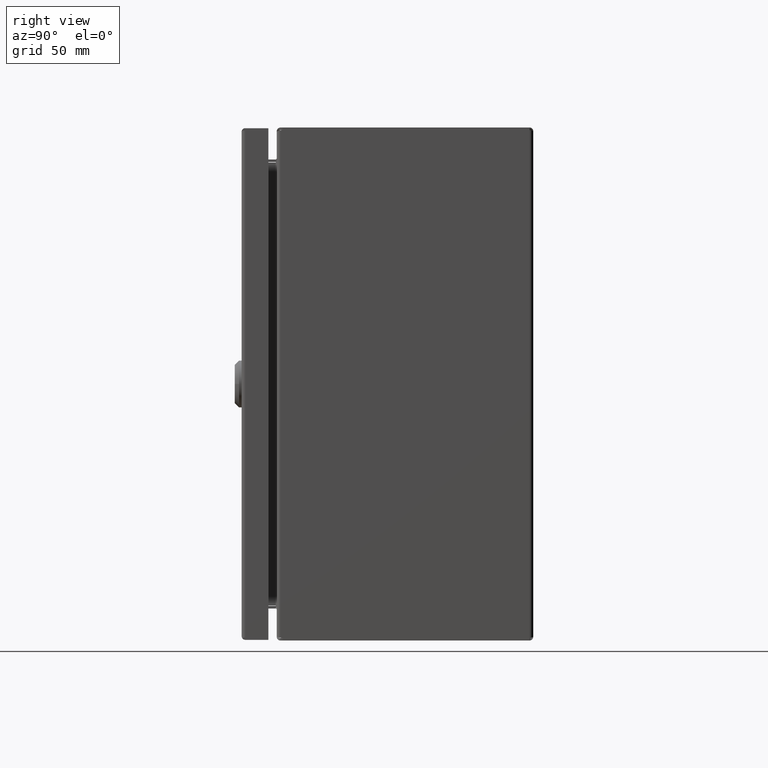
[diagram: clean part render]
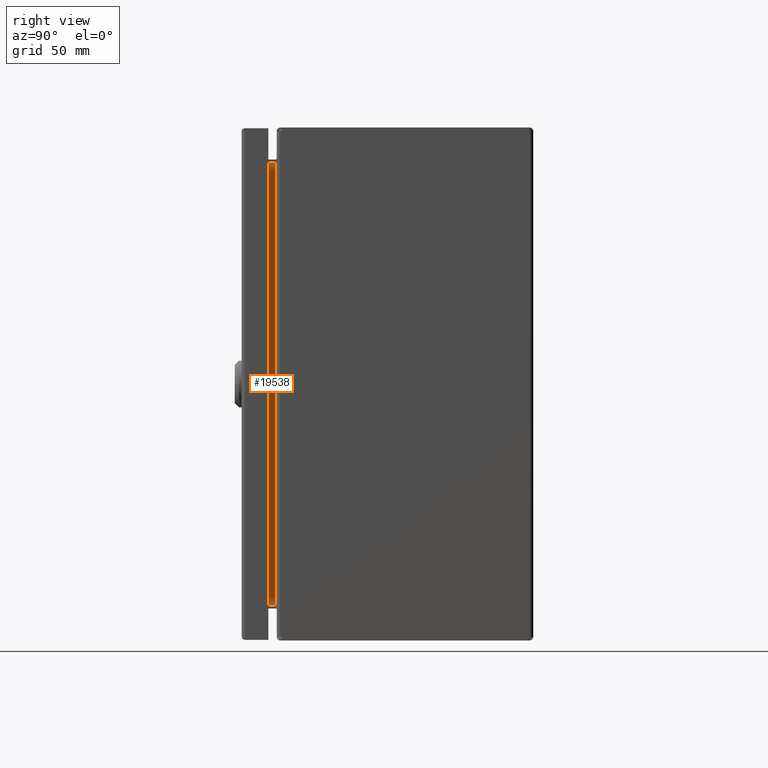
[diagram: same view with one face highlighted and labeled with its STEP entity id]
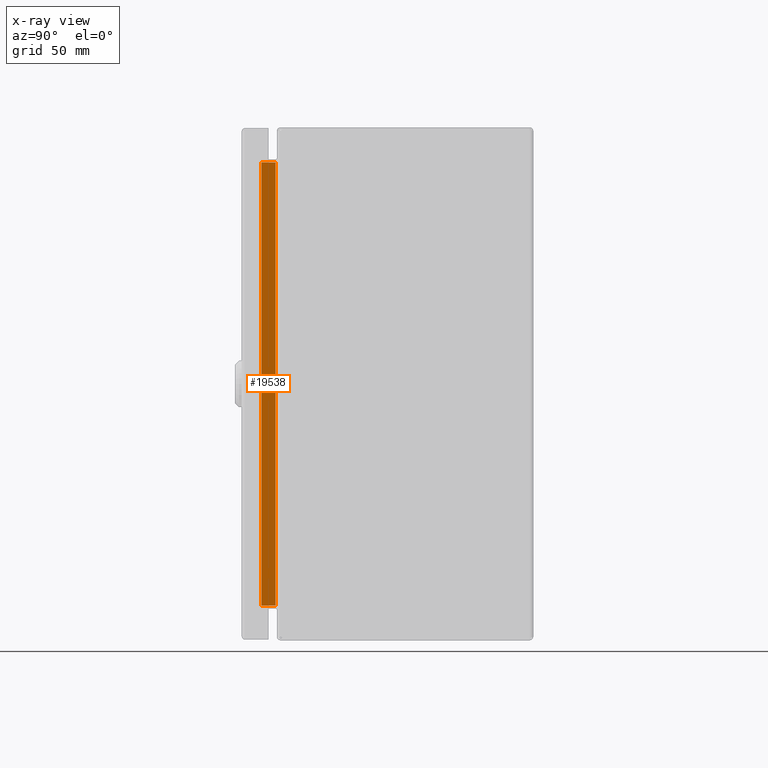
[diagram: x-ray of the same camera — body ghosted, the highlighted face saturated]
A machine part, right view. The second image highlights one B-rep face of the part: STEP entity #19538.
The next image is the same camera in x-ray: the body ghosted, the highlighted face saturated — about 0% of this face is hidden behind the body in this view.
In plain terms, the highlighted planar face has unit normal (-1, -0, 0).
Its self-contained STEP definition (entity closure, byte-faithful):
#388 = CARTESIAN_POINT ( 'NONE',  ( 4.251000000000001222, -5.943000000000000504, -5.182888644601379546 ) ) ;
#1071 = DIRECTION ( 'NONE',  ( -1.553373969664419962E-16, 1.540743955509790051E-33, 1.000000000000000000 ) ) ;
#1920 = ORIENTED_EDGE ( 'NONE', *, *, #6743, .T. ) ;
#2449 = CARTESIAN_POINT ( 'NONE',  ( 4.250999999999995005, -6.357955541162443325, -5.182888644601380435 ) ) ;
#2658 = EDGE_CURVE ( 'NONE', #2990, #15336, #4111, .T. ) ;
#2990 = VERTEX_POINT ( 'NONE', #17929 ) ;
#3284 = CARTESIAN_POINT ( 'NONE',  ( 4.250999999999991452, -6.363201537686063780, 5.184068737050465892 ) ) ;
#3326 = VERTEX_POINT ( 'NONE', #17433 ) ;
#3437 = VERTEX_POINT ( 'NONE', #2449 ) ;
#4111 = LINE ( 'NONE', #6576, #21939 ) ;
#4261 = CARTESIAN_POINT ( 'NONE',  ( 4.251000000000001222, -5.943000000000000504, 5.182888644601375105 ) ) ;
#4404 = LINE ( 'NONE', #4261, #19702 ) ;
#4480 = AXIS2_PLACEMENT_3D ( 'NONE', #7380, #22516, #6945 ) ;
#4555 = DIRECTION ( 'NONE',  ( 3.484770713257609976E-16, -1.000000000000000000, 0.0000000000000000000 ) ) ;
#5236 = CARTESIAN_POINT ( 'NONE',  ( 4.250999999999980794, -6.357955541162402469, 5.182888644601375994 ) ) ;
#6576 = CARTESIAN_POINT ( 'NONE',  ( 4.251000000000000334, -6.363201537686062892, -41.44149999999999778 ) ) ;
#6743 = EDGE_CURVE ( 'NONE', #7062, #3326, #14615, .T. ) ;
#6940 = EDGE_CURVE ( 'NONE', #7062, #3437, #11488, .T. ) ;
#6945 = DIRECTION ( 'NONE',  ( 3.484770713257609976E-16, -1.000000000000000000, 0.0000000000000000000 ) ) ;
#7062 = VERTEX_POINT ( 'NONE', #19121 ) ;
#7380 = CARTESIAN_POINT ( 'NONE',  ( 4.251000000000000334, -5.943000000000000504, -41.44149999999999778 ) ) ;
#7529 = ORIENTED_EDGE ( 'NONE', *, *, #2658, .F. ) ;
#9271 = ORIENTED_EDGE ( 'NONE', *, *, #21945, .T. ) ;
#10878 = FACE_OUTER_BOUND ( 'NONE', #16209, .T. ) ;
#11379 = EDGE_CURVE ( 'NONE', #12329, #15336, #11737, .T. ) ;
#11488 = LINE ( 'NONE', #388, #13495 ) ;
#11737 = LINE ( 'NONE', #5236, #14279 ) ;
#12329 = VERTEX_POINT ( 'NONE', #25966 ) ;
#12836 = CARTESIAN_POINT ( 'NONE',  ( 4.250999999999980794, -6.357955541162403357, -5.182888644601375105 ) ) ;
#13483 = ORIENTED_EDGE ( 'NONE', *, *, #6940, .F. ) ;
#13495 = VECTOR ( 'NONE', #4555, 39.37007874015748143 ) ;
#14279 = VECTOR ( 'NONE', #27492, 39.37007874015748854 ) ;
#14419 = VECTOR ( 'NONE', #19899, 39.37007874015748854 ) ;
#14615 = LINE ( 'NONE', #23382, #20811 ) ;
#15336 = VERTEX_POINT ( 'NONE', #3284 ) ;
#16209 = EDGE_LOOP ( 'NONE', ( #26764, #18343, #7529, #9271, #13483, #1920 ) ) ;
#17386 = DIRECTION ( 'NONE',  ( 2.636823467938429563E-17, 9.188725197102207569E-33, 1.000000000000000000 ) ) ;
#17433 = CARTESIAN_POINT ( 'NONE',  ( 4.251000000000000334, -6.028999999999999915, 5.182888644601377770 ) ) ;
#17750 = LINE ( 'NONE', #12836, #14419 ) ;
#17929 = CARTESIAN_POINT ( 'NONE',  ( 4.250999999999986123, -6.363201537686064668, -5.184068737050464115 ) ) ;
#18343 = ORIENTED_EDGE ( 'NONE', *, *, #11379, .T. ) ;
#19121 = CARTESIAN_POINT ( 'NONE',  ( 4.251000000000001222, -6.028999999999999915, -5.182888644601379546 ) ) ;
#19538 = ADVANCED_FACE ( 'NONE', ( #10878 ), #19641, .F. ) ;
#19641 = PLANE ( 'NONE',  #4480 ) ;
#19702 = VECTOR ( 'NONE', #23580, 39.37007874015748143 ) ;
#19899 = DIRECTION ( 'NONE',  ( -0.0000000000000000000, 0.9756199816001968061, 0.2194667434998559263 ) ) ;
#20811 = VECTOR ( 'NONE', #1071, 39.37007874015748143 ) ;
#21939 = VECTOR ( 'NONE', #17386, 39.37007874015748143 ) ;
#21945 = EDGE_CURVE ( 'NONE', #2990, #3437, #17750, .T. ) ;
#22516 = DIRECTION ( 'NONE',  ( -1.000000000000000000, -3.484770713257609976E-16, 2.636823467938429563E-17 ) ) ;
#23382 = CARTESIAN_POINT ( 'NONE',  ( 4.251000000000000334, -6.028999999999999915, -5.251688819766535232 ) ) ;
#23580 = DIRECTION ( 'NONE',  ( -3.484770713257609976E-16, 1.000000000000000000, -0.0000000000000000000 ) ) ;
#25966 = CARTESIAN_POINT ( 'NONE',  ( 4.250999999999995005, -6.357955541162441548, 5.182888644601379546 ) ) ;
#26764 = ORIENTED_EDGE ( 'NONE', *, *, #27738, .F. ) ;
#27492 = DIRECTION ( 'NONE',  ( -0.0000000000000000000, -0.9756199816001968061, 0.2194667434998559263 ) ) ;
#27738 = EDGE_CURVE ( 'NONE', #12329, #3326, #4404, .T. ) ;